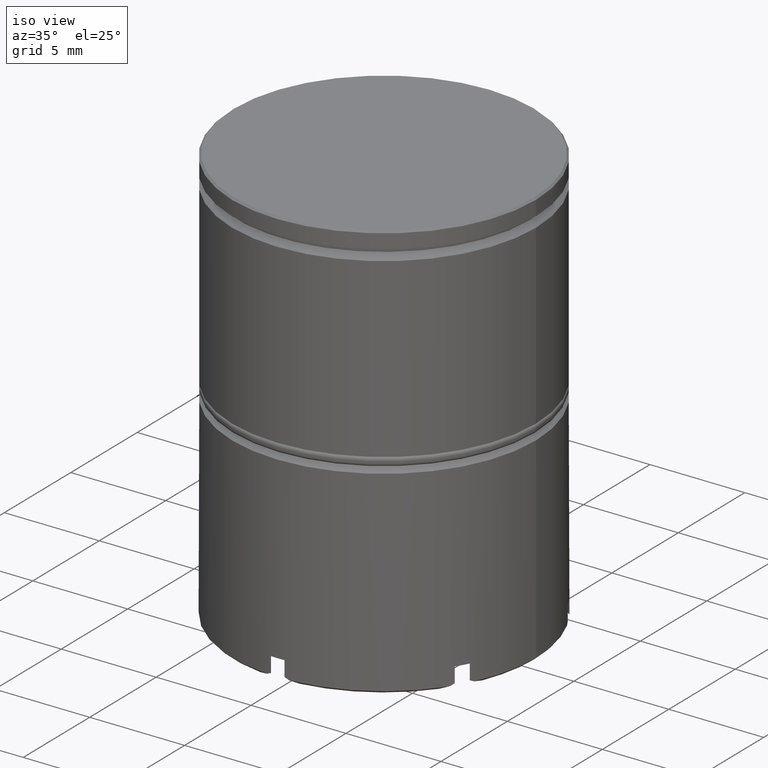
[diagram: clean part render]
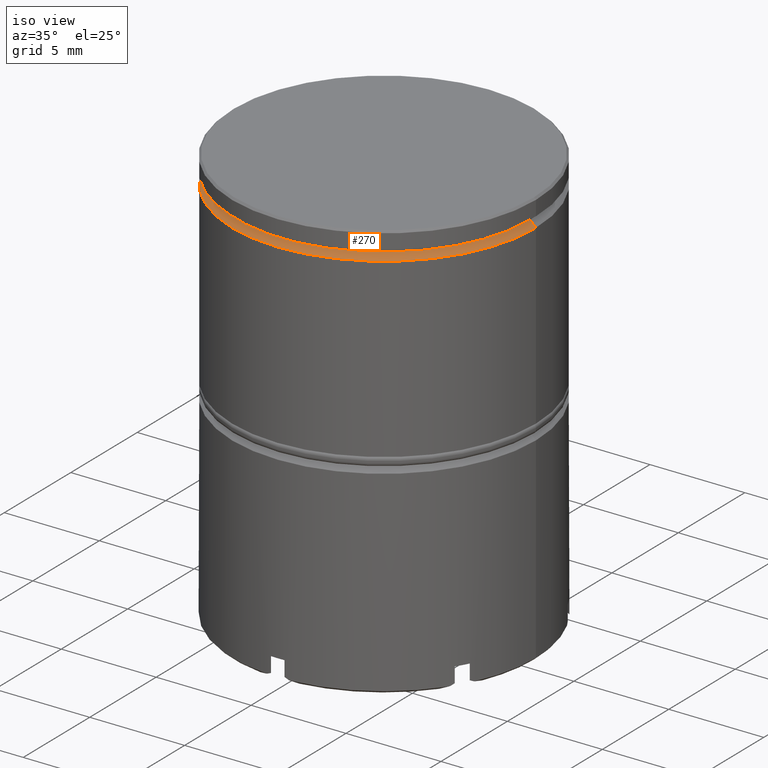
[diagram: same view with one face highlighted and labeled with its STEP entity id]
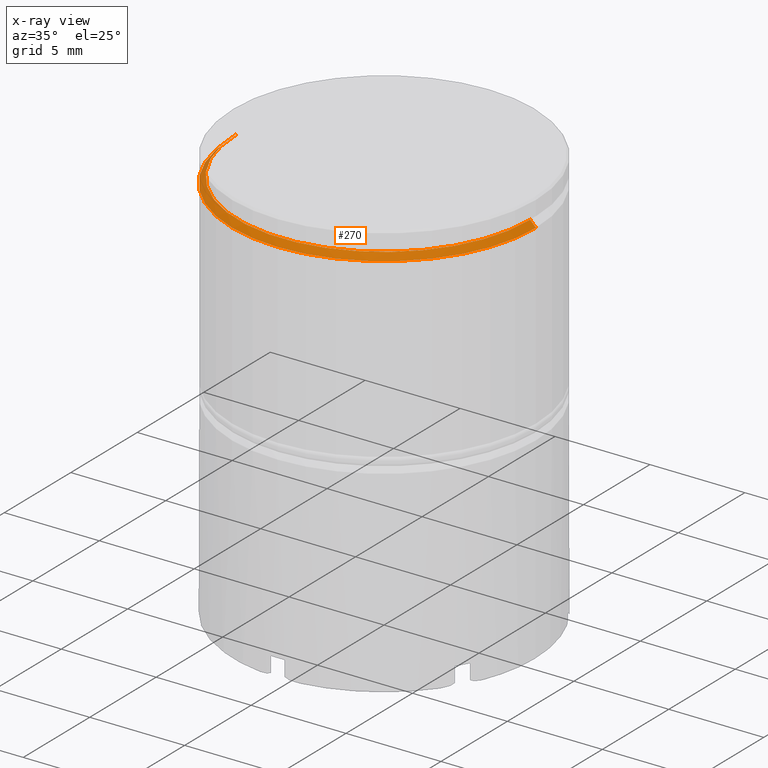
[diagram: x-ray of the same camera — body ghosted, the highlighted face saturated]
A machine part, iso view. The second image highlights one B-rep face of the part: STEP entity #270.
The next image is the same camera in x-ray: the body ghosted, the highlighted face saturated — about 0% of this face is hidden behind the body in this view.
In plain terms, the highlighted conical surface has half-angle 45 deg.
Its self-contained STEP definition (entity closure, byte-faithful):
#16 = ORIENTED_EDGE ( 'NONE', *, *, #910, .T. ) ;
#26 = DIRECTION ( 'NONE',  ( -0.000000000000000000, -0.000000000000000000, 1.000000000000000000 ) ) ;
#49 = CARTESIAN_POINT ( 'NONE',  ( 8.000000000000000000, 0.000000000000000000, -1.425000000000003597 ) ) ;
#126 = AXIS2_PLACEMENT_3D ( 'NONE', #1305, #554, #1061 ) ;
#150 = CARTESIAN_POINT ( 'NONE',  ( 0.000000000000000000, 0.000000000000000000, -1.125000000000000222 ) ) ;
#159 = CIRCLE ( 'NONE', #231, 8.000000000000000000 ) ;
#202 = CARTESIAN_POINT ( 'NONE',  ( 0.000000000000000000, 0.000000000000000000, -1.425000000000003597 ) ) ;
#208 = CONICAL_SURFACE ( 'NONE', #126, 7.699999999999994849, 0.7853981633974511656 ) ;
#231 = AXIS2_PLACEMENT_3D ( 'NONE', #202, #822, #706 ) ;
#270 = ADVANCED_FACE ( 'NONE', ( #1175 ), #208, .T. ) ;
#330 = EDGE_CURVE ( 'NONE', #1561, #1484, #1011, .T. ) ;
#407 = DIRECTION ( 'NONE',  ( 0.7071067811865495711, 8.659560562354957510E-17, -0.7071067811865454633 ) ) ;
#451 = EDGE_CURVE ( 'NONE', #778, #1561, #581, .T. ) ;
#508 = ORIENTED_EDGE ( 'NONE', *, *, #864, .F. ) ;
#529 = DIRECTION ( 'NONE',  ( 1.000000000000000000, 0.000000000000000000, 0.000000000000000000 ) ) ;
#554 = DIRECTION ( 'NONE',  ( 0.000000000000000000, 0.000000000000000000, -1.000000000000000000 ) ) ;
#581 = CIRCLE ( 'NONE', #1444, 7.700000000000000178 ) ;
#706 = DIRECTION ( 'NONE',  ( 1.000000000000000000, 0.000000000000000000, 0.000000000000000000 ) ) ;
#715 = CARTESIAN_POINT ( 'NONE',  ( 7.700000000000000178, 0.000000000000000000, -1.125000000000000222 ) ) ;
#778 = VERTEX_POINT ( 'NONE', #1280 ) ;
#789 = CARTESIAN_POINT ( 'NONE',  ( 7.699999999999994849, 9.429780353434613113E-16, -1.125000000000000222 ) ) ;
#822 = DIRECTION ( 'NONE',  ( 0.000000000000000000, 0.000000000000000000, -1.000000000000000000 ) ) ;
#824 = ORIENTED_EDGE ( 'NONE', *, *, #451, .F. ) ;
#833 = EDGE_LOOP ( 'NONE', ( #955, #824, #16, #508 ) ) ;
#834 = CARTESIAN_POINT ( 'NONE',  ( -7.699999999999994849, 0.000000000000000000, -1.125000000000000222 ) ) ;
#841 = DIRECTION ( 'NONE',  ( -0.7071067811865495711, 0.000000000000000000, -0.7071067811865454633 ) ) ;
#864 = EDGE_CURVE ( 'NONE', #1484, #1554, #159, .T. ) ;
#910 = EDGE_CURVE ( 'NONE', #778, #1554, #1341, .T. ) ;
#955 = ORIENTED_EDGE ( 'NONE', *, *, #330, .F. ) ;
#976 = VECTOR ( 'NONE', #841, 1000.000000000000000 ) ;
#1011 = LINE ( 'NONE', #789, #1597 ) ;
#1053 = CARTESIAN_POINT ( 'NONE',  ( -8.000000000000000000, 9.797174393178825657E-16, -1.425000000000003597 ) ) ;
#1061 = DIRECTION ( 'NONE',  ( -1.000000000000000000, 0.000000000000000000, 0.000000000000000000 ) ) ;
#1175 = FACE_OUTER_BOUND ( 'NONE', #833, .T. ) ;
#1280 = CARTESIAN_POINT ( 'NONE',  ( -7.700000000000000178, 9.429780353434619030E-16, -1.125000000000000222 ) ) ;
#1305 = CARTESIAN_POINT ( 'NONE',  ( 0.000000000000000000, 0.000000000000000000, -1.125000000000000222 ) ) ;
#1341 = LINE ( 'NONE', #834, #976 ) ;
#1444 = AXIS2_PLACEMENT_3D ( 'NONE', #150, #26, #529 ) ;
#1484 = VERTEX_POINT ( 'NONE', #49 ) ;
#1554 = VERTEX_POINT ( 'NONE', #1053 ) ;
#1561 = VERTEX_POINT ( 'NONE', #715 ) ;
#1597 = VECTOR ( 'NONE', #407, 1000.000000000000000 ) ;